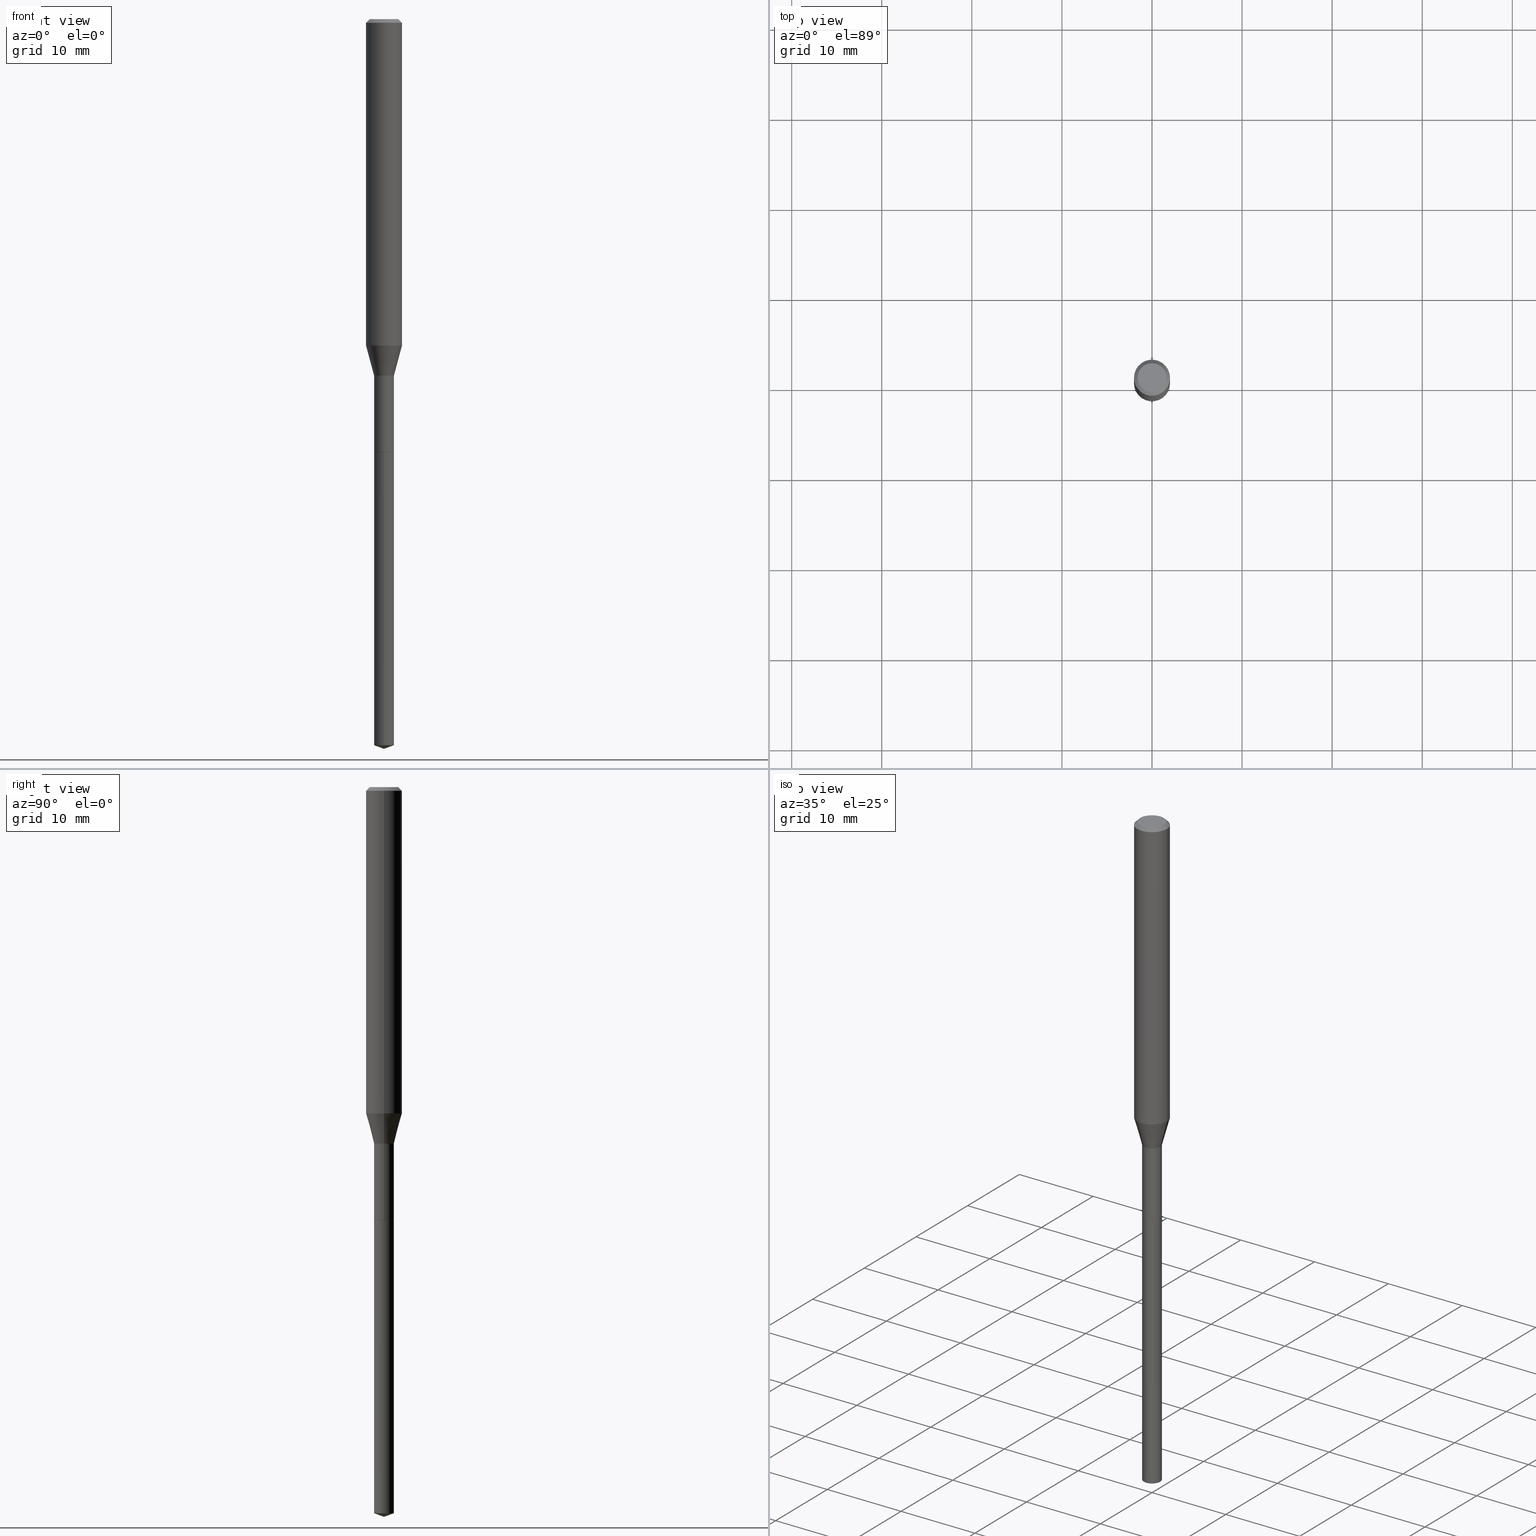
[diagram: canonical four-view strip — front | top / right | iso, engineering-drawing reading convention]
A machine part, canonical four-view strip (front | top / right | iso — engineering-drawing reading convention). The complete STEP part file that produces these views, byte-faithful:
ISO-10303-21;
HEADER;
FILE_DESCRIPTION (( 'STEP AP203' ),
    '1' );
FILE_NAME ('06043.STEP',
    '2024-04-23T19:07:40',
    ( '' ),
    ( '' ),
    'SwSTEP 2.0',
    'SolidWorks 2023',
    '' );
FILE_SCHEMA (( 'CONFIG_CONTROL_DESIGN' ));
ENDSEC;

DATA;
#1 = CONICAL_SURFACE ( 'NONE', #239, 0.04279999999999998389, 0.7853981633972689780 ) ;
#2 = DIRECTION ( 'NONE',  ( 1.000000000000000000, -6.982962677686267499E-15, 4.876176775795935232E-29 ) ) ;
#3 = AXIS2_PLACEMENT_3D ( 'NONE', #220, #432, #22 ) ;
#4 = CARTESIAN_POINT ( 'NONE',  ( 3.851613369741613048E-31, -5.499083108677987075E-17, -0.01575000000000009379 ) ) ;
#5 = ORIENTED_EDGE ( 'NONE', *, *, #269, .T. ) ;
#6 = DIRECTION ( 'NONE',  ( -2.445492202617929765E-29, 3.491447833819743351E-15, 1.000000000000000000 ) ) ;
#7 = DIRECTION ( 'NONE',  ( -0.7071067811864205632, 7.493145998869895043E-15, 0.7071067811866742492 ) ) ;
#8 = ORIENTED_EDGE ( 'NONE', *, *, #427, .T. ) ;
#9 = CIRCLE ( 'NONE', #289, 0.07875000000000000056 ) ;
#10 = ORGANIZATION ( 'UNSPECIFIED', 'UNSPECIFIED', '' ) ;
#11 = CARTESIAN_POINT ( 'NONE',  ( 7.760089679753951505E-29, -1.107926555222043350E-14, -3.173240088856273733 ) ) ;
#12 = ORIENTED_EDGE ( 'NONE', *, *, #488, .F. ) ;
#13 = CC_DESIGN_PERSON_AND_ORGANIZATION_ASSIGNMENT ( #131, #62, ( #410 ) ) ;
#14 = DIRECTION ( 'NONE',  ( -2.445492202617929485E-29, 3.491447833819743351E-15, 1.000000000000000000 ) ) ;
#15 = EDGE_LOOP ( 'NONE', ( #275, #235, #461 ) ) ;
#16 = ORIENTED_EDGE ( 'NONE', *, *, #45, .F. ) ;
#17 = CARTESIAN_POINT ( 'NONE',  ( -0.04279999999999998389, -6.291439916066345437E-15, -1.889800000000000590 ) ) ;
#18 = CALENDAR_DATE ( 2024, 23, 4 ) ;
#19 = AXIS2_PLACEMENT_3D ( 'NONE', #232, #109, #191 ) ;
#20 = EDGE_LOOP ( 'NONE', ( #351, #246 ) ) ;
#21 = VERTEX_POINT ( 'NONE', #180 ) ;
#22 = DIRECTION ( 'NONE',  ( 1.000000000000000000, 0.000000000000000000, 0.000000000000000000 ) ) ;
#23 = EDGE_CURVE ( 'NONE', #332, #140, #441, .T. ) ;
#24 = DIRECTION ( 'NONE',  ( -2.445468806185136877E-29, 3.491481338843145188E-15, 1.000000000000000000 ) ) ;
#25 = COORDINATED_UNIVERSAL_TIME_OFFSET ( 5, 0, .BEHIND. ) ;
#26 = ORIENTED_EDGE ( 'NONE', *, *, #154, .T. ) ;
#27 = PERSON_AND_ORGANIZATION ( #408, #10 ) ;
#28 = VECTOR ( 'NONE', #329, 39.37007874015748143 ) ;
#29 = AXIS2_PLACEMENT_3D ( 'NONE', #255, #163, #398 ) ;
#30 = CARTESIAN_POINT ( 'NONE',  ( 0.04329999999999994270, -5.741741061727553218E-15, -1.557900000000000285 ) ) ;
#31 = CARTESIAN_POINT ( 'NONE',  ( 3.809795853155824737E-29, -5.439378777783737756E-15, -1.557900000000000285 ) ) ;
#32 = CARTESIAN_POINT ( 'NONE',  ( -8.848059015593915362E-28, 1.263242856747911798E-13, 36.18107874015748138 ) ) ;
#33 = CARTESIAN_POINT ( 'NONE',  ( 3.809795853155824737E-29, -5.439378777783737756E-15, -1.557900000000000285 ) ) ;
#34 = CARTESIAN_POINT ( 'NONE',  ( 4.621446949928673110E-29, -6.598201434145779157E-15, -1.889800000000000590 ) ) ;
#35 = AXIS2_PLACEMENT_3D ( 'NONE', #32, #296, #137 ) ;
#36 = CC_DESIGN_DATE_AND_TIME_ASSIGNMENT ( #476, #53, ( #198 ) ) ;
#37 = DIRECTION ( 'NONE',  ( 2.445492202617929485E-29, -3.491447833819743351E-15, -1.000000000000000000 ) ) ;
#38 = EDGE_LOOP ( 'NONE', ( #463, #42, #52, #444 ) ) ;
#39 = LINE ( 'NONE', #379, #304 ) ;
#40 = CYLINDRICAL_SURFACE ( 'NONE', #115, 0.04329999999999996352 ) ;
#41 = DIRECTION ( 'NONE',  ( -2.445468806185136597E-29, 3.491481338843145583E-15, 1.000000000000000000 ) ) ;
#42 = ORIENTED_EDGE ( 'NONE', *, *, #300, .T. ) ;
#43 = VECTOR ( 'NONE', #85, 39.37007874015748143 ) ;
#44 = LOCAL_TIME ( 15, 7, 40.00000000000000000, #326 ) ;
#45 = EDGE_CURVE ( 'NONE', #387, #308, #370, .T. ) ;
#46 = CYLINDRICAL_SURFACE ( 'NONE', #110, 0.04329999999999996352 ) ;
#47 = DIRECTION ( 'NONE',  ( 0.7071067811864205632, -2.468850131080928224E-15, 0.7071067811866742492 ) ) ;
#48 = ORIENTED_EDGE ( 'NONE', *, *, #298, .F. ) ;
#49 = DIRECTION ( 'NONE',  ( 0.2588190451025215166, 1.565188264969620784E-15, 0.9659258262890679791 ) ) ;
#50 = VERTEX_POINT ( 'NONE', #265 ) ;
#51 = ORIENTED_EDGE ( 'NONE', *, *, #113, .F. ) ;
#52 = ORIENTED_EDGE ( 'NONE', *, *, #427, .F. ) ;
#53 = DATE_TIME_ROLE ( 'creation_date' ) ;
#54 = ORIENTED_EDGE ( 'NONE', *, *, #23, .F. ) ;
#55 = CARTESIAN_POINT ( 'NONE',  ( -0.04329999999999997740, -5.710252231045924288E-15, -1.889300000000000423 ) ) ;
#56 = LOCAL_TIME ( 15, 7, 40.00000000000000000, #465 ) ;
#57 = CARTESIAN_POINT ( 'NONE',  ( -3.023622839437690673E-16, -0.04330000000000659710, -1.889800000000000146 ) ) ;
#58 = PERSON_AND_ORGANIZATION_ROLE ( 'creator' ) ;
#59 = DIRECTION ( 'NONE',  ( -0.2588190451025215166, 5.211531920934551042E-15, 0.9659258262890679791 ) ) ;
#60 = EDGE_CURVE ( 'NONE', #282, #162, #481, .T. ) ;
#61 = ORIENTED_EDGE ( 'NONE', *, *, #356, .F. ) ;
#62 = PERSON_AND_ORGANIZATION_ROLE ( 'classification_officer' ) ;
#63 = ORIENTED_EDGE ( 'NONE', *, *, #23, .T. ) ;
#64 = APPROVAL_PERSON_ORGANIZATION ( #393, #82, #181 ) ;
#65 = DIRECTION ( 'NONE',  ( -2.445468806185136597E-29, 3.491481338843145583E-15, 1.000000000000000000 ) ) ;
#66 = CARTESIAN_POINT ( 'NONE',  ( 3.851613369741613048E-31, -5.499083108677987075E-17, -0.01575000000000009379 ) ) ;
#67 = FACE_OUTER_BOUND ( 'NONE', #319, .T. ) ;
#68 = DIRECTION ( 'NONE',  ( -2.445468806185136597E-29, 3.491481338843145583E-15, 1.000000000000000000 ) ) ;
#69 = EDGE_CURVE ( 'NONE', #128, #162, #445, .T. ) ;
#70 = CYLINDRICAL_SURFACE ( 'NONE', #157, 0.07875000000000008382 ) ;
#71 = AXIS2_PLACEMENT_3D ( 'NONE', #31, #132, #186 ) ;
#72 = EDGE_CURVE ( 'NONE', #50, #359, #294, .T. ) ;
#73 = ADVANCED_FACE ( 'NONE', ( #258 ), #331, .T. ) ;
#74 = CARTESIAN_POINT ( 'NONE',  ( 9.427742298522557911E-47, -1.346031739168366987E-32, -3.855188123715866879E-18 ) ) ;
#75 = CARTESIAN_POINT ( 'NONE',  ( 4.621446949928671989E-29, -6.598201434145778368E-15, -1.889800000000000368 ) ) ;
#76 =( NAMED_UNIT ( * ) PLANE_ANGLE_UNIT ( ) SI_UNIT ( $, .RADIAN. ) );
#77 = ORIENTED_EDGE ( 'NONE', *, *, #60, .T. ) ;
#78 = DIRECTION ( 'NONE',  ( 1.000000000000000000, -6.982962677686265922E-15, 4.875905316334701673E-29 ) ) ;
#79 = AXIS2_PLACEMENT_3D ( 'NONE', #475, #141, #100 ) ;
#80 = AXIS2_PLACEMENT_3D ( 'NONE', #451, #68, #335 ) ;
#81 = FACE_OUTER_BOUND ( 'NONE', #391, .T. ) ;
#82 = APPROVAL ( #328, 'UNSPECIFIED' ) ;
#83 = ORIENTED_EDGE ( 'NONE', *, *, #452, .T. ) ;
#84 = EDGE_CURVE ( 'NONE', #359, #140, #406, .T. ) ;
#85 = DIRECTION ( 'NONE',  ( -0.7071067811865453523, 2.468850131082234184E-15, -0.7071067811865496822 ) ) ;
#86 = FACE_OUTER_BOUND ( 'NONE', #279, .T. ) ;
#87 = ORIENTED_EDGE ( 'NONE', *, *, #269, .F. ) ;
#88 = CONICAL_SURFACE ( 'NONE', #80, 0.04329999999999994270, 0.2617993877991502405 ) ;
#89 = APPROVAL_STATUS ( 'not_yet_approved' ) ;
#90 = ORIENTED_EDGE ( 'NONE', *, *, #69, .T. ) ;
#91 = PERSON_AND_ORGANIZATION_ROLE ( 'design_owner' ) ;
#92 = ORIENTED_EDGE ( 'NONE', *, *, #45, .T. ) ;
#93 = ORIENTED_EDGE ( 'NONE', *, *, #124, .T. ) ;
#94 = PERSON_AND_ORGANIZATION ( #408, #10 ) ;
#95 = ORIENTED_EDGE ( 'NONE', *, *, #443, .F. ) ;
#96 = DIRECTION ( 'NONE',  ( -6.982962677686265922E-15, -1.000000000000000000, 6.309117768277745325E-15 ) ) ;
#97 = CIRCLE ( 'NONE', #383, 0.04329999999999997740 ) ;
#98 = APPROVAL_PERSON_ORGANIZATION ( #101, #340, #249 ) ;
#99 = FACE_OUTER_BOUND ( 'NONE', #250, .T. ) ;
#100 = DIRECTION ( 'NONE',  ( 1.000000000000000000, -6.982962677686271444E-15, 0.000000000000000000 ) ) ;
#101 = PERSON_AND_ORGANIZATION ( #408, #10 ) ;
#102 = ADVANCED_FACE ( 'NONE', ( #67 ), #223, .T. ) ;
#103 = ORIENTED_EDGE ( 'NONE', *, *, #260, .F. ) ;
#104 = ORIENTED_EDGE ( 'NONE', *, *, #443, .T. ) ;
#105 = VECTOR ( 'NONE', #288, 39.37007874015748143 ) ;
#106 = APPROVAL ( #89, 'UNSPECIFIED' ) ;
#107 = DIRECTION ( 'NONE',  ( -2.445468806185136597E-29, 3.491481338843145583E-15, 1.000000000000000000 ) ) ;
#108 = CARTESIAN_POINT ( 'NONE',  ( -3.801582652717938438E-29, -1.866045923420822627E-14, -1.889800000000000590 ) ) ;
#109 = DIRECTION ( 'NONE',  ( -2.445468806185136597E-29, 3.491481338843145583E-15, 1.000000000000000000 ) ) ;
#110 = AXIS2_PLACEMENT_3D ( 'NONE', #116, #41, #310 ) ;
#111 = DIRECTION ( 'NONE',  ( -2.445492202617929765E-29, 3.491447833819743351E-15, 1.000000000000000000 ) ) ;
#112 = DIRECTION ( 'NONE',  ( -2.445468806185136597E-29, 3.491481338843145583E-15, 1.000000000000000000 ) ) ;
#113 = EDGE_CURVE ( 'NONE', #167, #308, #224, .T. ) ;
#114 = DIRECTION ( 'NONE',  ( -2.445468806185136597E-29, 3.491481338843145583E-15, 1.000000000000000000 ) ) ;
#115 = AXIS2_PLACEMENT_3D ( 'NONE', #417, #338, #2 ) ;
#116 = CARTESIAN_POINT ( 'NONE',  ( 0.000000000000000000, 0.000000000000000000, 0.000000000000000000 ) ) ;
#117 = EDGE_LOOP ( 'NONE', ( #429, #363, #425, #433 ) ) ;
#118 = DIRECTION ( 'NONE',  ( -1.000000000000000000, 6.982962677686265922E-15, 0.000000000000000000 ) ) ;
#119 = EDGE_LOOP ( 'NONE', ( #122, #156, #12 ) ) ;
#120 = CARTESIAN_POINT ( 'NONE',  ( 3.076650045842008734E-16, 0.04329999999998892374, -3.173240088856273733 ) ) ;
#121 = LINE ( 'NONE', #343, #416 ) ;
#122 = ORIENTED_EDGE ( 'NONE', *, *, #161, .F. ) ;
#123 = ORIENTED_EDGE ( 'NONE', *, *, #227, .T. ) ;
#124 = EDGE_CURVE ( 'NONE', #471, #285, #311, .T. ) ;
#125 = PRODUCT_DEFINITION_FORMATION_WITH_SPECIFIED_SOURCE ( 'ANY', '', #208, .NOT_KNOWN. ) ;
#126 = MECHANICAL_CONTEXT ( 'NONE', #388, 'mechanical' ) ;
#127 = ORIENTED_EDGE ( 'NONE', *, *, #84, .T. ) ;
#128 = VERTEX_POINT ( 'NONE', #57 ) ;
#129 = ADVANCED_FACE ( 'NONE', ( #360 ), #400, .T. ) ;
#130 = LINE ( 'NONE', #219, #247 ) ;
#131 = PERSON_AND_ORGANIZATION ( #408, #10 ) ;
#132 = DIRECTION ( 'NONE',  ( -2.445468806185136597E-29, 3.491481338843145583E-15, 1.000000000000000000 ) ) ;
#133 = APPROVAL_ROLE ( '' ) ;
#134 = CIRCLE ( 'NONE', #446, 0.04329999999999997740 ) ;
#135 = EDGE_CURVE ( 'NONE', #290, #167, #130, .T. ) ;
#136 = ADVANCED_FACE ( 'NONE', ( #233 ), #70, .T. ) ;
#137 = DIRECTION ( 'NONE',  ( -6.982962677686265133E-15, -1.000000000000000000, 3.475157955500728497E-15 ) ) ;
#138 = DIRECTION ( 'NONE',  ( -1.000000000000000000, 6.982962677686265922E-15, 0.000000000000000000 ) ) ;
#139 = ORIENTED_EDGE ( 'NONE', *, *, #135, .F. ) ;
#140 = VERTEX_POINT ( 'NONE', #193 ) ;
#141 = DIRECTION ( 'NONE',  ( -2.445468806185136597E-29, 3.491481338843145583E-15, 1.000000000000000000 ) ) ;
#142 = CIRCLE ( 'NONE', #409, 0.04329999999999994270 ) ;
#143 = CARTESIAN_POINT ( 'NONE',  ( 7.798586204991194065E-29, -1.113435377763761489E-14, -3.189000000000000501 ) ) ;
#144 = CARTESIAN_POINT ( 'NONE',  ( -0.07875000000000008382, 5.595524044110794920E-16, -3.873661383575742696E-30 ) ) ;
#145 = DIRECTION ( 'NONE',  ( 1.000000000000000000, -6.982962677686258822E-15, 0.000000000000000000 ) ) ;
#146 = ORIENTED_EDGE ( 'NONE', *, *, #384, .T. ) ;
#147 = FACE_OUTER_BOUND ( 'NONE', #396, .T. ) ;
#148 = PLANE ( 'NONE',  #421 ) ;
#149 = CIRCLE ( 'NONE', #339, 0.07875000000000000056 ) ;
#150 = AXIS2_PLACEMENT_3D ( 'NONE', #278, #114, #460 ) ;
#151 = DIRECTION ( 'NONE',  ( -2.445468806185136597E-29, 3.491481338843145583E-15, 1.000000000000000000 ) ) ;
#152 =( NAMED_UNIT ( * ) SI_UNIT ( $, .STERADIAN. ) SOLID_ANGLE_UNIT ( ) );
#153 = ORIENTED_EDGE ( 'NONE', *, *, #192, .T. ) ;
#154 = EDGE_CURVE ( 'NONE', #332, #254, #390, .T. ) ;
#155 = CARTESIAN_POINT ( 'NONE',  ( 0.04279999999999998389, -6.897072236750750823E-15, -1.889800000000000590 ) ) ;
#156 = ORIENTED_EDGE ( 'NONE', *, *, #305, .T. ) ;
#157 = AXIS2_PLACEMENT_3D ( 'NONE', #456, #112, #415 ) ;
#158 = LOCAL_TIME ( 15, 7, 40.00000000000000000, #25 ) ;
#159 = ADVANCED_FACE ( 'NONE', ( #230 ), #306, .F. ) ;
#160 = CARTESIAN_POINT ( 'NONE',  ( 0.04329999999999994270, -5.741741061727553218E-15, -1.557900000000000285 ) ) ;
#161 = EDGE_CURVE ( 'NONE', #464, #282, #39, .T. ) ;
#162 = VERTEX_POINT ( 'NONE', #375 ) ;
#163 = DIRECTION ( 'NONE',  ( -2.445492202617929765E-29, 3.491447833819743351E-15, 1.000000000000000000 ) ) ;
#164 = DIRECTION ( 'NONE',  ( 1.000000000000000000, -6.982962677686277755E-15, 0.000000000000000000 ) ) ;
#165 = ORIENTED_EDGE ( 'NONE', *, *, #488, .T. ) ;
#166 = PRODUCT_RELATED_PRODUCT_CATEGORY ( 'detail', '', ( #208 ) ) ;
#167 = VERTEX_POINT ( 'NONE', #334 ) ;
#168 = VECTOR ( 'NONE', #293, 39.37007874015748143 ) ;
#169 = CIRCLE ( 'NONE', #150, 0.07875000000000016709 ) ;
#170 = CIRCLE ( 'NONE', #277, 0.04329999999999999127 ) ;
#171 = CALENDAR_DATE ( 2024, 23, 4 ) ;
#172 = EDGE_LOOP ( 'NONE', ( #365, #165, #83, #87 ) ) ;
#173 = CARTESIAN_POINT ( 'NONE',  ( -8.848059015593915362E-28, 1.263242856747911798E-13, 36.18107874015748138 ) ) ;
#174 = APPLICATION_PROTOCOL_DEFINITION ( 'international standard', 'config_control_design', 1994, #474 ) ;
#175 = DIRECTION ( 'NONE',  ( 1.000000000000000000, -6.982962677686265922E-15, 0.000000000000000000 ) ) ;
#176 = ADVANCED_FACE ( 'NONE', ( #302 ), #40, .T. ) ;
#177 = PRODUCT_DEFINITION_SHAPE ( 'NONE', 'NONE',  #198 ) ;
#178 = ORIENTED_EDGE ( 'NONE', *, *, #356, .T. ) ;
#179 = CARTESIAN_POINT ( 'NONE',  ( 7.760089679753951505E-29, -1.107926555222043350E-14, -3.173240088856273733 ) ) ;
#180 = CARTESIAN_POINT ( 'NONE',  ( -3.023622839437377594E-16, -0.04330000000001107269, -3.173240088856273733 ) ) ;
#181 = APPROVAL_ROLE ( '' ) ;
#182 = AXIS2_PLACEMENT_3D ( 'NONE', #187, #151, #487 ) ;
#183 = AXIS2_PLACEMENT_3D ( 'NONE', #4, #199, #118 ) ;
#184 = ORIENTED_EDGE ( 'NONE', *, *, #211, .F. ) ;
#185 = DIRECTION ( 'NONE',  ( -2.445468806185136597E-29, 3.491481338843145583E-15, 1.000000000000000000 ) ) ;
#186 = DIRECTION ( 'NONE',  ( 1.000000000000000000, -6.982962677686277755E-15, 0.000000000000000000 ) ) ;
#187 = CARTESIAN_POINT ( 'NONE',  ( 4.621446949928673110E-29, -6.598201434145779157E-15, -1.889800000000000590 ) ) ;
#188 = AXIS2_PLACEMENT_3D ( 'NONE', #226, #214, #372 ) ;
#189 = FACE_OUTER_BOUND ( 'NONE', #38, .T. ) ;
#190 = ADVANCED_FACE ( 'NONE', ( #189 ), #88, .T. ) ;
#191 = DIRECTION ( 'NONE',  ( 1.000000000000000000, -6.982962677686265922E-15, 4.875905316334701673E-29 ) ) ;
#192 = EDGE_CURVE ( 'NONE', #285, #471, #368, .T. ) ;
#193 = CARTESIAN_POINT ( 'NONE',  ( 0.07875000000000000056, -6.048991419545733705E-16, -0.01575000000000009379 ) ) ;
#194 = CARTESIAN_POINT ( 'NONE',  ( 4.713871149261278955E-47, -6.730158695841834933E-33, -1.927594061857933439E-18 ) ) ;
#195 = AXIS2_PLACEMENT_3D ( 'NONE', #448, #107, #267 ) ;
#196 = CIRCLE ( 'NONE', #225, 0.04329999999999999127 ) ;
#197 = FACE_OUTER_BOUND ( 'NONE', #434, .T. ) ;
#198 = PRODUCT_DEFINITION ( 'UNKNOWN', '', #125, #418 ) ;
#199 = DIRECTION ( 'NONE',  ( 2.445468806185136597E-29, -3.491481338843145583E-15, -1.000000000000000000 ) ) ;
#200 = EDGE_LOOP ( 'NONE', ( #430, #153, #104, #404 ) ) ;
#201 = AXIS2_PLACEMENT_3D ( 'NONE', #346, #314, #164 ) ;
#202 = CARTESIAN_POINT ( 'NONE',  ( 0.04279999999999998389, -6.897072236750750823E-15, -1.889800000000000590 ) ) ;
#203 = ORIENTED_EDGE ( 'NONE', *, *, #264, .F. ) ;
#204 = ADVANCED_FACE ( 'NONE', ( #147 ), #337, .T. ) ;
#205 = CC_DESIGN_PERSON_AND_ORGANIZATION_ASSIGNMENT ( #94, #357, ( #125 ) ) ;
#206 = PERSON_AND_ORGANIZATION ( #408, #10 ) ;
#207 = ORIENTED_EDGE ( 'NONE', *, *, #69, .F. ) ;
#208 = PRODUCT ( '06043', '06043', '', ( #126 ) ) ;
#209 = COORDINATED_UNIVERSAL_TIME_OFFSET ( 5, 0, .BEHIND. ) ;
#210 = ORIENTED_EDGE ( 'NONE', *, *, #227, .F. ) ;
#211 = EDGE_CURVE ( 'NONE', #140, #323, #149, .T. ) ;
#212 = LINE ( 'NONE', #401, #43 ) ;
#213 = AXIS2_PLACEMENT_3D ( 'NONE', #75, #37, #377 ) ;
#214 = DIRECTION ( 'NONE',  ( -2.445468806185136597E-29, 3.491481338843145583E-15, 1.000000000000000000 ) ) ;
#215 = DATE_AND_TIME ( #18, #240 ) ;
#216 = CC_DESIGN_PERSON_AND_ORGANIZATION_ASSIGNMENT ( #27, #91, ( #208 ) ) ;
#217 = DIRECTION ( 'NONE',  ( 1.000000000000000000, -6.982962677686272233E-15, 0.000000000000000000 ) ) ;
#218 = ADVANCED_FACE ( 'NONE', ( #273 ), #1, .T. ) ;
#219 = CARTESIAN_POINT ( 'NONE',  ( -0.04329999999999996352, 3.076650045841231213E-16, -2.129898894080372302E-30 ) ) ;
#220 = CARTESIAN_POINT ( 'NONE',  ( 0.000000000000000000, 0.000000000000000000, 0.000000000000000000 ) ) ;
#221 = DATE_AND_TIME ( #286, #158 ) ;
#222 = CARTESIAN_POINT ( 'NONE',  ( -0.06300000000000000044, 4.674220642376242452E-16, -3.855188123719040041E-18 ) ) ;
#223 = CYLINDRICAL_SURFACE ( 'NONE', #188, 0.07875000000000008382 ) ;
#224 = CIRCLE ( 'NONE', #71, 0.04329999999999994270 ) ;
#225 = AXIS2_PLACEMENT_3D ( 'NONE', #11, #389, #462 ) ;
#226 = CARTESIAN_POINT ( 'NONE',  ( 0.000000000000000000, 0.000000000000000000, 0.000000000000000000 ) ) ;
#227 = EDGE_CURVE ( 'NONE', #254, #332, #428, .T. ) ;
#228 = ADVANCED_FACE ( 'NONE', ( #229 ), #374, .T. ) ;
#229 = FACE_OUTER_BOUND ( 'NONE', #280, .T. ) ;
#230 = FACE_OUTER_BOUND ( 'NONE', #353, .T. ) ;
#231 = AXIS2_PLACEMENT_3D ( 'NONE', #173, #325, #472 ) ;
#232 = CARTESIAN_POINT ( 'NONE',  ( 9.427742298522557911E-47, -1.346031739168366987E-32, -3.855188123715866879E-18 ) ) ;
#233 = FACE_OUTER_BOUND ( 'NONE', #486, .T. ) ;
#234 = UNCERTAINTY_MEASURE_WITH_UNIT (LENGTH_MEASURE( 1.000000000000000082E-05 ), #422, 'distance_accuracy_value', 'NONE');
#235 = ORIENTED_EDGE ( 'NONE', *, *, #161, .T. ) ;
#236 = DIRECTION ( 'NONE',  ( 1.000000000000000000, -6.982962677686265922E-15, 0.000000000000000000 ) ) ;
#237 = APPLICATION_PROTOCOL_DEFINITION ( 'international standard', 'config_control_design', 1994, #388 ) ;
#238 = AXIS2_PLACEMENT_3D ( 'NONE', #295, #287, #96 ) ;
#239 = AXIS2_PLACEMENT_3D ( 'NONE', #454, #420, #270 ) ;
#240 = LOCAL_TIME ( 15, 7, 40.00000000000000000, #364 ) ;
#241 = ADVANCED_FACE ( 'NONE', ( #299 ), #148, .F. ) ;
#242 = DIRECTION ( 'NONE',  ( 2.438088387897960049E-29, -3.491481338843145188E-15, -1.000000000000000000 ) ) ;
#243 = ORIENTED_EDGE ( 'NONE', *, *, #84, .F. ) ;
#244 = LINE ( 'NONE', #426, #320 ) ;
#245 = LINE ( 'NONE', #160, #313 ) ;
#246 = ORIENTED_EDGE ( 'NONE', *, *, #192, .F. ) ;
#247 = VECTOR ( 'NONE', #24, 39.37007874015748143 ) ;
#248 = CC_DESIGN_PERSON_AND_ORGANIZATION_ASSIGNMENT ( #291, #58, ( #125 ) ) ;
#249 = APPROVAL_ROLE ( '' ) ;
#250 = EDGE_LOOP ( 'NONE', ( #54, #210, #435, #424 ) ) ;
#251 = ADVANCED_FACE ( 'NONE', ( #99 ), #333, .T. ) ;
#252 = ORIENTED_EDGE ( 'NONE', *, *, #452, .F. ) ;
#253 = ADVANCED_BREP_SHAPE_REPRESENTATION ( '06043', ( #324, #478, #3 ), #257 ) ;
#254 = VERTEX_POINT ( 'NONE', #222 ) ;
#255 = CARTESIAN_POINT ( 'NONE',  ( 4.621446949928671989E-29, -6.598201434145778368E-15, -1.889800000000000368 ) ) ;
#256 = VECTOR ( 'NONE', #355, 39.37007874015748143 ) ;
#257 =( GEOMETRIC_REPRESENTATION_CONTEXT ( 3 ) GLOBAL_UNCERTAINTY_ASSIGNED_CONTEXT ( ( #234 ) ) GLOBAL_UNIT_ASSIGNED_CONTEXT ( ( #422, #76, #152 ) ) REPRESENTATION_CONTEXT ( 'NONE', 'WORKASPACE' ) );
#258 = FACE_OUTER_BOUND ( 'NONE', #172, .T. ) ;
#259 = CALENDAR_DATE ( 2024, 23, 4 ) ;
#260 = EDGE_CURVE ( 'NONE', #50, #323, #490, .T. ) ;
#261 = CARTESIAN_POINT ( 'NONE',  ( 4.621446949928671989E-29, -6.598201434145778368E-15, -1.889800000000000368 ) ) ;
#262 = APPROVAL_STATUS ( 'not_yet_approved' ) ;
#263 = CARTESIAN_POINT ( 'NONE',  ( 3.076650045841695161E-16, 0.04329999999999339239, -1.889800000000000590 ) ) ;
#264 = EDGE_CURVE ( 'NONE', #308, #167, #142, .T. ) ;
#265 = CARTESIAN_POINT ( 'NONE',  ( -0.07875000000000016709, -4.417899198526604658E-15, -1.425598798871683170 ) ) ;
#266 = CARTESIAN_POINT ( 'NONE',  ( -0.07875000000000000056, -1.956668812601151806E-15, -0.01575000000000009379 ) ) ;
#267 = DIRECTION ( 'NONE',  ( 1.000000000000000000, -6.982962677686258822E-15, 0.000000000000000000 ) ) ;
#268 = DIRECTION ( 'NONE',  ( -2.438088387897960049E-29, 3.491481338843145188E-15, 1.000000000000000000 ) ) ;
#269 = EDGE_CURVE ( 'NONE', #162, #128, #466, .T. ) ;
#270 = DIRECTION ( 'NONE',  ( 1.000000000000000000, -6.982962677686258822E-15, 0.000000000000000000 ) ) ;
#271 = VECTOR ( 'NONE', #412, 39.37007874015748143 ) ;
#272 = DIRECTION ( 'NONE',  ( -2.445468806185136597E-29, 3.491481338843145583E-15, 1.000000000000000000 ) ) ;
#273 = FACE_OUTER_BOUND ( 'NONE', #200, .T. ) ;
#274 = FACE_OUTER_BOUND ( 'NONE', #117, .T. ) ;
#275 = ORIENTED_EDGE ( 'NONE', *, *, #305, .F. ) ;
#276 = CC_DESIGN_DATE_AND_TIME_ASSIGNMENT ( #366, #403, ( #410 ) ) ;
#277 = AXIS2_PLACEMENT_3D ( 'NONE', #179, #6, #344 ) ;
#278 = CARTESIAN_POINT ( 'NONE',  ( 3.486257392775699753E-29, -4.977451602937685037E-15, -1.425598798871683170 ) ) ;
#279 = EDGE_LOOP ( 'NONE', ( #380, #63, #394, #48 ) ) ;
#280 = EDGE_LOOP ( 'NONE', ( #93, #467, #61, #95 ) ) ;
#281 = SHAPE_DEFINITION_REPRESENTATION ( #177, #253 ) ;
#282 = VERTEX_POINT ( 'NONE', #120 ) ;
#283 = AXIS2_PLACEMENT_3D ( 'NONE', #457, #111, #485 ) ;
#284 = LOCAL_TIME ( 15, 7, 40.00000000000000000, #209 ) ;
#285 = VERTEX_POINT ( 'NONE', #17 ) ;
#286 = CALENDAR_DATE ( 2024, 23, 4 ) ;
#287 = DIRECTION ( 'NONE',  ( -2.445492202617929765E-29, 3.491447833819743351E-15, 1.000000000000000000 ) ) ;
#288 = DIRECTION ( 'NONE',  ( -6.561838499445200852E-15, -0.9396926207859072067, 0.3420201433256718770 ) ) ;
#289 = AXIS2_PLACEMENT_3D ( 'NONE', #407, #442, #175 ) ;
#290 = VERTEX_POINT ( 'NONE', #55 ) ;
#291 = PERSON_AND_ORGANIZATION ( #408, #10 ) ;
#292 = DIRECTION ( 'NONE',  ( -2.445492202617929765E-29, 3.491447833819743351E-15, 1.000000000000000000 ) ) ;
#293 = DIRECTION ( 'NONE',  ( -2.445492202617929485E-29, 3.491447833819743351E-15, 1.000000000000000000 ) ) ;
#294 = CIRCLE ( 'NONE', #79, 0.07875000000000016709 ) ;
#295 = CARTESIAN_POINT ( 'NONE',  ( 4.621446949928671989E-29, -6.598201434145778368E-15, -1.889800000000000368 ) ) ;
#296 = DIRECTION ( 'NONE',  ( -2.445492202617929765E-29, 3.491447833819743351E-15, 1.000000000000000000 ) ) ;
#297 = DIRECTION ( 'NONE',  ( 1.000000000000000000, -6.982962677686265922E-15, 4.876176775795935793E-29 ) ) ;
#298 = EDGE_CURVE ( 'NONE', #254, #323, #212, .T. ) ;
#299 = FACE_OUTER_BOUND ( 'NONE', #20, .T. ) ;
#300 = EDGE_CURVE ( 'NONE', #167, #50, #244, .T. ) ;
#301 = DIRECTION ( 'NONE',  ( -2.445468806185136597E-29, 3.491481338843145583E-15, 1.000000000000000000 ) ) ;
#302 = FACE_OUTER_BOUND ( 'NONE', #327, .T. ) ;
#303 = VECTOR ( 'NONE', #483, 39.37007874015748143 ) ;
#304 = VECTOR ( 'NONE', #413, 39.37007874015748143 ) ;
#305 = EDGE_CURVE ( 'NONE', #464, #21, #367, .T. ) ;
#306 = PLANE ( 'NONE',  #213 ) ;
#307 = LENGTH_MEASURE_WITH_UNIT ( LENGTH_MEASURE( 0.02539999999999999897 ), #419 );
#308 = VERTEX_POINT ( 'NONE', #30 ) ;
#309 = CARTESIAN_POINT ( 'NONE',  ( 7.798674634148579575E-29, -1.113422714205116300E-14, -3.189000000000000501 ) ) ;
#310 = DIRECTION ( 'NONE',  ( 1.000000000000000000, -6.982962677686267499E-15, 4.876176775795935232E-29 ) ) ;
#311 = CIRCLE ( 'NONE', #195, 0.04279999999999998389 ) ;
#312 = ORIENTED_EDGE ( 'NONE', *, *, #260, .T. ) ;
#313 = VECTOR ( 'NONE', #49, 39.37007874015748143 ) ;
#314 = DIRECTION ( 'NONE',  ( -2.445468806185136597E-29, 3.491481338843145583E-15, 1.000000000000000000 ) ) ;
#315 = ORIENTED_EDGE ( 'NONE', *, *, #362, .T. ) ;
#316 = LINE ( 'NONE', #458, #382 ) ;
#317 = ORIENTED_EDGE ( 'NONE', *, *, #352, .F. ) ;
#318 = APPROVAL_DATE_TIME ( #221, #82 ) ;
#319 = EDGE_LOOP ( 'NONE', ( #8, #312, #184, #243 ) ) ;
#320 = VECTOR ( 'NONE', #59, 39.37007874015748143 ) ;
#321 = CC_DESIGN_APPROVAL ( #340, ( #125 ) ) ;
#322 = DATE_AND_TIME ( #171, #44 ) ;
#323 = VERTEX_POINT ( 'NONE', #266 ) ;
#324 = MANIFOLD_SOLID_BREP ( 'Body-Move/Copy2[1]', #381 ) ;
#325 = DIRECTION ( 'NONE',  ( -2.445492202617929765E-29, 3.491447833819743351E-15, 1.000000000000000000 ) ) ;
#326 = COORDINATED_UNIVERSAL_TIME_OFFSET ( 5, 0, .BEHIND. ) ;
#327 = EDGE_LOOP ( 'NONE', ( #139, #315, #92, #51 ) ) ;
#328 = APPROVAL_STATUS ( 'not_yet_approved' ) ;
#329 = DIRECTION ( 'NONE',  ( 0.7071067811865453523, -7.319954787623248157E-15, -0.7071067811865496822 ) ) ;
#330 = FACE_OUTER_BOUND ( 'NONE', #15, .T. ) ;
#331 = CYLINDRICAL_SURFACE ( 'NONE', #477, 0.04329999999999999127 ) ;
#332 = VERTEX_POINT ( 'NONE', #480 ) ;
#333 = CONICAL_SURFACE ( 'NONE', #459, 0.07875000000000000056, 0.7853981633974452814 ) ;
#334 = CARTESIAN_POINT ( 'NONE',  ( -0.04329999999999994270, -5.710252231045924288E-15, -1.557900000000000285 ) ) ;
#335 = DIRECTION ( 'NONE',  ( 1.000000000000000000, -6.982962677686277755E-15, 0.000000000000000000 ) ) ;
#336 = ADVANCED_FACE ( 'NONE', ( #330 ), #484, .T. ) ;
#337 = CYLINDRICAL_SURFACE ( 'NONE', #283, 0.04329999999999999127 ) ;
#338 = DIRECTION ( 'NONE',  ( -2.445468806185136597E-29, 3.491481338843145583E-15, 1.000000000000000000 ) ) ;
#339 = AXIS2_PLACEMENT_3D ( 'NONE', #373, #301, #236 ) ;
#340 = APPROVAL ( #262, 'UNSPECIFIED' ) ;
#341 = DIRECTION ( 'NONE',  ( -1.000000000000000000, 6.982962677686265922E-15, -4.876176775795935793E-29 ) ) ;
#342 = CC_DESIGN_APPROVAL ( #106, ( #198 ) ) ;
#343 = CARTESIAN_POINT ( 'NONE',  ( -3.023622839437690673E-16, -0.04330000000000659710, -1.889800000000000146 ) ) ;
#344 = DIRECTION ( 'NONE',  ( -6.982962677686265922E-15, -1.000000000000000000, 0.000000000000000000 ) ) ;
#345 = ORIENTED_EDGE ( 'NONE', *, *, #135, .T. ) ;
#346 = CARTESIAN_POINT ( 'NONE',  ( 3.809795853155824737E-29, -5.439378777783737756E-15, -1.557900000000000285 ) ) ;
#347 = AXIS2_PLACEMENT_3D ( 'NONE', #34, #272, #145 ) ;
#348 = ORIENTED_EDGE ( 'NONE', *, *, #72, .T. ) ;
#349 = DIRECTION ( 'NONE',  ( 1.000000000000000000, -6.982962677686277755E-15, 0.000000000000000000 ) ) ;
#350 = CARTESIAN_POINT ( 'NONE',  ( 0.04329999999999997740, -6.898817977420172327E-15, -1.889300000000000423 ) ) ;
#351 = ORIENTED_EDGE ( 'NONE', *, *, #124, .F. ) ;
#352 = EDGE_CURVE ( 'NONE', #323, #140, #9, .T. ) ;
#353 = EDGE_LOOP ( 'NONE', ( #90, #5 ) ) ;
#354 = DIRECTION ( 'NONE',  ( -2.445468806185136597E-29, 3.491481338843145583E-15, 1.000000000000000000 ) ) ;
#355 = DIRECTION ( 'NONE',  ( -2.445468806185136877E-29, 3.491481338843145188E-15, 1.000000000000000000 ) ) ;
#356 = EDGE_CURVE ( 'NONE', #387, #290, #97, .T. ) ;
#357 = PERSON_AND_ORGANIZATION_ROLE ( 'design_supplier' ) ;
#358 = CC_DESIGN_PERSON_AND_ORGANIZATION_ASSIGNMENT ( #206, #405, ( #198 ) ) ;
#359 = VERTEX_POINT ( 'NONE', #371 ) ;
#360 = FACE_OUTER_BOUND ( 'NONE', #119, .T. ) ;
#361 = DIRECTION ( 'NONE',  ( 1.000000000000000000, -6.982962677686272233E-15, 0.000000000000000000 ) ) ;
#362 = EDGE_CURVE ( 'NONE', #290, #387, #134, .T. ) ;
#363 = ORIENTED_EDGE ( 'NONE', *, *, #113, .T. ) ;
#364 = COORDINATED_UNIVERSAL_TIME_OFFSET ( 5, 0, .BEHIND. ) ;
#365 = ORIENTED_EDGE ( 'NONE', *, *, #60, .F. ) ;
#366 = DATE_AND_TIME ( #440, #56 ) ;
#367 = LINE ( 'NONE', #143, #105 ) ;
#368 = CIRCLE ( 'NONE', #182, 0.04279999999999998389 ) ;
#369 = CONICAL_SURFACE ( 'NONE', #201, 0.04329999999999994270, 0.2617993877991502405 ) ;
#370 = LINE ( 'NONE', #437, #303 ) ;
#371 = CARTESIAN_POINT ( 'NONE',  ( 0.07875000000000016709, -5.527359913805479171E-15, -1.425598798871683170 ) ) ;
#372 = DIRECTION ( 'NONE',  ( 1.000000000000000000, -6.982962677686267499E-15, 4.876176775795935232E-29 ) ) ;
#373 = CARTESIAN_POINT ( 'NONE',  ( 3.851613369741613048E-31, -5.499083108677987075E-17, -0.01575000000000009379 ) ) ;
#374 = CONICAL_SURFACE ( 'NONE', #347, 0.04279999999999998389, 0.7853981633972689780 ) ;
#375 = CARTESIAN_POINT ( 'NONE',  ( 3.076650045842010706E-16, 0.04329999999999339239, -1.889800000000000590 ) ) ;
#376 = VECTOR ( 'NONE', #47, 39.37007874015748854 ) ;
#377 = DIRECTION ( 'NONE',  ( 6.982962677686265922E-15, 1.000000000000000000, -3.491447833819743351E-15 ) ) ;
#378 = DIMENSIONAL_EXPONENTS ( 1.000000000000000000, 0.000000000000000000, 0.000000000000000000, 0.000000000000000000, 0.000000000000000000, 0.000000000000000000, 0.000000000000000000 ) ;
#379 = CARTESIAN_POINT ( 'NONE',  ( 7.798675409567907317E-29, -1.113422714205116300E-14, -3.189000000000000501 ) ) ;
#380 = ORIENTED_EDGE ( 'NONE', *, *, #154, .F. ) ;
#381 = CLOSED_SHELL ( 'NONE', ( #204, #336, #129, #73, #159 ) ) ;
#382 = VECTOR ( 'NONE', #7, 39.37007874015748854 ) ;
#383 = AXIS2_PLACEMENT_3D ( 'NONE', #449, #65, #217 ) ;
#384 = EDGE_CURVE ( 'NONE', #21, #282, #170, .T. ) ;
#385 = EDGE_CURVE ( 'NONE', #285, #290, #316, .T. ) ;
#386 = LINE ( 'NONE', #202, #376 ) ;
#387 = VERTEX_POINT ( 'NONE', #350 ) ;
#388 = APPLICATION_CONTEXT ( 'configuration controlled 3d designs of mechanical parts and assemblies' ) ;
#389 = DIRECTION ( 'NONE',  ( -2.445492202617929765E-29, 3.491447833819743351E-15, 1.000000000000000000 ) ) ;
#390 = CIRCLE ( 'NONE', #19, 0.06300000000000000044 ) ;
#391 = EDGE_LOOP ( 'NONE', ( #178, #345, #203, #16 ) ) ;
#392 = CONICAL_SURFACE ( 'NONE', #183, 0.07875000000000000056, 0.7853981633974452814 ) ;
#393 = PERSON_AND_ORGANIZATION ( #408, #10 ) ;
#394 = ORIENTED_EDGE ( 'NONE', *, *, #211, .T. ) ;
#395 = PERSON_AND_ORGANIZATION ( #408, #10 ) ;
#396 = EDGE_LOOP ( 'NONE', ( #146, #77, #207, #252 ) ) ;
#397 = ADVANCED_FACE ( 'NONE', ( #81 ), #46, .T. ) ;
#398 = DIRECTION ( 'NONE',  ( -6.982962677686265922E-15, -1.000000000000000000, 6.309117768277745325E-15 ) ) ;
#399 = APPROVAL_DATE_TIME ( #322, #340 ) ;
#400 = CONICAL_SURFACE ( 'NONE', #231, 108.1684023407332091, 1.221730476396030829 ) ;
#401 = CARTESIAN_POINT ( 'NONE',  ( -0.07875000000000000056, 4.949174797810136167E-16, -0.01575000000000009379 ) ) ;
#402 = DIRECTION ( 'NONE',  ( -6.982962677686265922E-15, -1.000000000000000000, 6.309117768277745325E-15 ) ) ;
#403 = DATE_TIME_ROLE ( 'classification_date' ) ;
#404 = ORIENTED_EDGE ( 'NONE', *, *, #362, .F. ) ;
#405 = PERSON_AND_ORGANIZATION_ROLE ( 'creator' ) ;
#406 = LINE ( 'NONE', #411, #271 ) ;
#407 = CARTESIAN_POINT ( 'NONE',  ( 3.851613369741613048E-31, -5.499083108677987075E-17, -0.01575000000000009379 ) ) ;
#408 = PERSON ( 'UNSPECIFIED', 'UNSPECIFIED', 'UNSPECIFIED', ('UNSPECIFIED'), ('UNSPECIFIED'), ('UNSPECIFIED') ) ;
#409 = AXIS2_PLACEMENT_3D ( 'NONE', #33, #354, #349 ) ;
#410 = SECURITY_CLASSIFICATION ( '', '', #473 ) ;
#411 = CARTESIAN_POINT ( 'NONE',  ( 0.07875000000000008382, -5.499083108677941345E-16, 3.839989210939303220E-30 ) ) ;
#412 = DIRECTION ( 'NONE',  ( -2.445468806185136877E-29, 3.491481338843145188E-15, 1.000000000000000000 ) ) ;
#413 = DIRECTION ( 'NONE',  ( 6.676917655467968129E-15, 0.9396926207859095381, 0.3420201433256653267 ) ) ;
#414 = AXIS2_PLACEMENT_3D ( 'NONE', #74, #489, #78 ) ;
#415 = DIRECTION ( 'NONE',  ( 1.000000000000000000, -6.982962677686267499E-15, 4.876176775795935232E-29 ) ) ;
#416 = VECTOR ( 'NONE', #14, 39.37007874015748143 ) ;
#417 = CARTESIAN_POINT ( 'NONE',  ( 0.000000000000000000, 0.000000000000000000, 0.000000000000000000 ) ) ;
#418 = DESIGN_CONTEXT ( 'detailed design', #474, 'design' ) ;
#419 =( LENGTH_UNIT ( ) NAMED_UNIT ( * ) SI_UNIT ( $, .METRE. ) );
#420 = DIRECTION ( 'NONE',  ( -2.445468806185136597E-29, 3.491481338843145583E-15, 1.000000000000000000 ) ) ;
#421 = AXIS2_PLACEMENT_3D ( 'NONE', #108, #268, #297 ) ;
#422 =( CONVERSION_BASED_UNIT ( 'INCH', #307 ) LENGTH_UNIT ( ) NAMED_UNIT ( #378 ) );
#423 = PLANE ( 'NONE',  #431 ) ;
#424 = ORIENTED_EDGE ( 'NONE', *, *, #352, .T. ) ;
#425 = ORIENTED_EDGE ( 'NONE', *, *, #450, .T. ) ;
#426 = CARTESIAN_POINT ( 'NONE',  ( -0.04329999999999994270, -5.131713773199615128E-15, -1.557900000000000285 ) ) ;
#427 = EDGE_CURVE ( 'NONE', #359, #50, #169, .T. ) ;
#428 = CIRCLE ( 'NONE', #414, 0.06300000000000000044 ) ;
#429 = ORIENTED_EDGE ( 'NONE', *, *, #300, .F. ) ;
#430 = ORIENTED_EDGE ( 'NONE', *, *, #385, .F. ) ;
#431 = AXIS2_PLACEMENT_3D ( 'NONE', #194, #242, #341 ) ;
#432 = DIRECTION ( 'NONE',  ( 0.000000000000000000, 0.000000000000000000, 1.000000000000000000 ) ) ;
#433 = ORIENTED_EDGE ( 'NONE', *, *, #72, .F. ) ;
#434 = EDGE_LOOP ( 'NONE', ( #123, #26 ) ) ;
#435 = ORIENTED_EDGE ( 'NONE', *, *, #298, .T. ) ;
#436 = ADVANCED_FACE ( 'NONE', ( #197 ), #423, .F. ) ;
#437 = CARTESIAN_POINT ( 'NONE',  ( 0.04329999999999996352, -3.023622839438151170E-16, 2.111384543919638175E-30 ) ) ;
#438 = CARTESIAN_POINT ( 'NONE',  ( 4.620224215525580309E-29, -6.596455693476356864E-15, -1.889300000000000423 ) ) ;
#439 = CARTESIAN_POINT ( 'NONE',  ( 0.07875000000000000056, -5.952550484112880131E-16, -0.01575000000000009379 ) ) ;
#440 = CALENDAR_DATE ( 2024, 23, 4 ) ;
#441 = LINE ( 'NONE', #439, #28 ) ;
#442 = DIRECTION ( 'NONE',  ( -2.445468806185136597E-29, 3.491481338843145583E-15, 1.000000000000000000 ) ) ;
#443 = EDGE_CURVE ( 'NONE', #471, #387, #386, .T. ) ;
#444 = ORIENTED_EDGE ( 'NONE', *, *, #450, .F. ) ;
#445 = CIRCLE ( 'NONE', #238, 0.04329999999999999127 ) ;
#446 = AXIS2_PLACEMENT_3D ( 'NONE', #438, #185, #361 ) ;
#447 = APPROVAL_PERSON_ORGANIZATION ( #395, #106, #133 ) ;
#448 = CARTESIAN_POINT ( 'NONE',  ( 4.621446949928673110E-29, -6.598201434145779157E-15, -1.889800000000000590 ) ) ;
#449 = CARTESIAN_POINT ( 'NONE',  ( 4.620224215525580309E-29, -6.596455693476356864E-15, -1.889300000000000423 ) ) ;
#450 = EDGE_CURVE ( 'NONE', #308, #359, #245, .T. ) ;
#451 = CARTESIAN_POINT ( 'NONE',  ( 3.809795853155824737E-29, -5.439378777783737756E-15, -1.557900000000000285 ) ) ;
#452 = EDGE_CURVE ( 'NONE', #21, #128, #121, .T. ) ;
#453 = ADVANCED_FACE ( 'NONE', ( #86 ), #392, .T. ) ;
#454 = CARTESIAN_POINT ( 'NONE',  ( 4.621446949928673110E-29, -6.598201434145779157E-15, -1.889800000000000590 ) ) ;
#455 = CLOSED_SHELL ( 'NONE', ( #228, #453, #102, #190, #397, #176, #469, #136, #251, #436, #241, #218 ) ) ;
#456 = CARTESIAN_POINT ( 'NONE',  ( 0.000000000000000000, 0.000000000000000000, 0.000000000000000000 ) ) ;
#457 = CARTESIAN_POINT ( 'NONE',  ( 4.621446949928671989E-29, -6.598201434145778368E-15, -1.889800000000000368 ) ) ;
#458 = CARTESIAN_POINT ( 'NONE',  ( -0.04279999999999998389, -6.294089143240456638E-15, -1.889800000000000590 ) ) ;
#459 = AXIS2_PLACEMENT_3D ( 'NONE', #66, #482, #138 ) ;
#460 = DIRECTION ( 'NONE',  ( 1.000000000000000000, -6.982962677686271444E-15, 0.000000000000000000 ) ) ;
#461 = ORIENTED_EDGE ( 'NONE', *, *, #384, .F. ) ;
#462 = DIRECTION ( 'NONE',  ( -6.982962677686265922E-15, -1.000000000000000000, 0.000000000000000000 ) ) ;
#463 = ORIENTED_EDGE ( 'NONE', *, *, #264, .T. ) ;
#464 = VERTEX_POINT ( 'NONE', #309 ) ;
#465 = COORDINATED_UNIVERSAL_TIME_OFFSET ( 5, 0, .BEHIND. ) ;
#466 = CIRCLE ( 'NONE', #29, 0.04329999999999999127 ) ;
#467 = ORIENTED_EDGE ( 'NONE', *, *, #385, .T. ) ;
#468 = CC_DESIGN_APPROVAL ( #82, ( #410 ) ) ;
#469 = ADVANCED_FACE ( 'NONE', ( #274 ), #369, .T. ) ;
#470 = APPROVAL_DATE_TIME ( #215, #106 ) ;
#471 = VERTEX_POINT ( 'NONE', #155 ) ;
#472 = DIRECTION ( 'NONE',  ( -6.982962677686265133E-15, -1.000000000000000000, 3.475157955500728497E-15 ) ) ;
#473 = SECURITY_CLASSIFICATION_LEVEL ( 'unclassified' ) ;
#474 = APPLICATION_CONTEXT ( 'configuration controlled 3d designs of mechanical parts and assemblies' ) ;
#475 = CARTESIAN_POINT ( 'NONE',  ( 3.486257392775699753E-29, -4.977451602937685037E-15, -1.425598798871683170 ) ) ;
#476 = DATE_AND_TIME ( #259, #284 ) ;
#477 = AXIS2_PLACEMENT_3D ( 'NONE', #261, #292, #402 ) ;
#478 = MANIFOLD_SOLID_BREP ( 'Body-Move/Copy2[2]', #455 ) ;
#479 = CC_DESIGN_SECURITY_CLASSIFICATION ( #410, ( #125 ) ) ;
#480 = CARTESIAN_POINT ( 'NONE',  ( 0.06300000000000000044, -5.137332111354472216E-16, -3.855188123712532709E-18 ) ) ;
#481 = LINE ( 'NONE', #263, #168 ) ;
#482 = DIRECTION ( 'NONE',  ( 2.445468806185136597E-29, -3.491481338843145583E-15, -1.000000000000000000 ) ) ;
#483 = DIRECTION ( 'NONE',  ( -2.445468806185136877E-29, 3.491481338843145188E-15, 1.000000000000000000 ) ) ;
#484 = CONICAL_SURFACE ( 'NONE', #35, 108.1684023407332091, 1.221730476396030829 ) ;
#485 = DIRECTION ( 'NONE',  ( -6.982962677686265922E-15, -1.000000000000000000, 6.309117768277745325E-15 ) ) ;
#486 = EDGE_LOOP ( 'NONE', ( #103, #348, #127, #317 ) ) ;
#487 = DIRECTION ( 'NONE',  ( 1.000000000000000000, -6.982962677686258822E-15, 0.000000000000000000 ) ) ;
#488 = EDGE_CURVE ( 'NONE', #282, #21, #196, .T. ) ;
#489 = DIRECTION ( 'NONE',  ( -2.445468806185136597E-29, 3.491481338843145583E-15, 1.000000000000000000 ) ) ;
#490 = LINE ( 'NONE', #144, #256 ) ;
ENDSEC;
END-ISO-10303-21;
